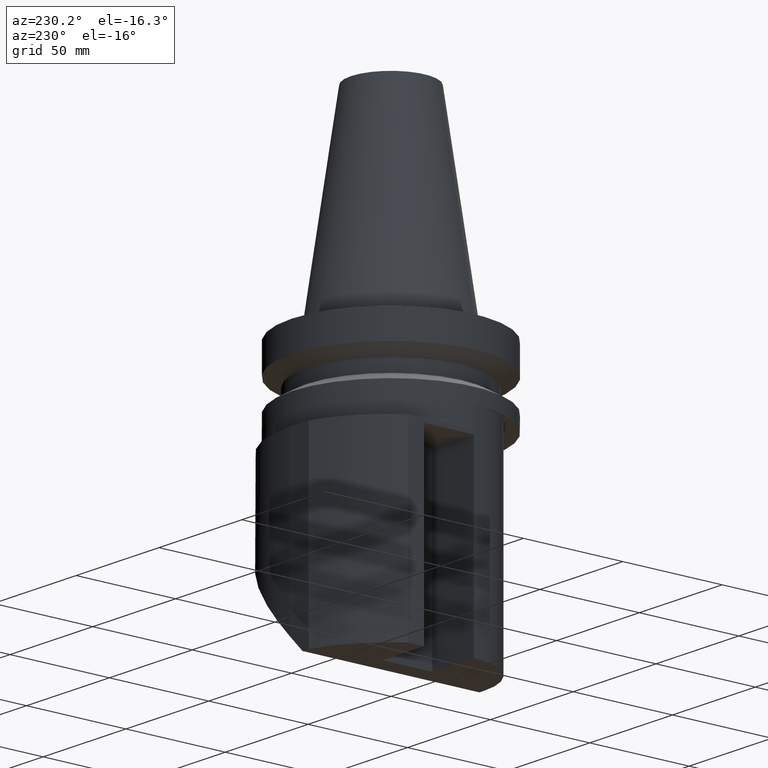
[diagram: clean part render]
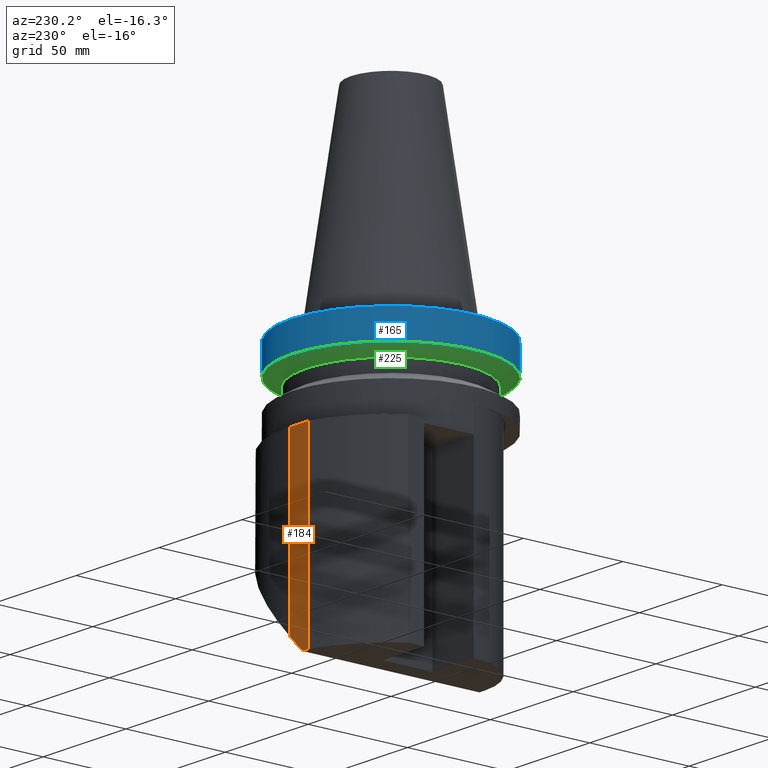
[diagram: same view with three faces highlighted in distinct colors, each labeled with its STEP entity id]
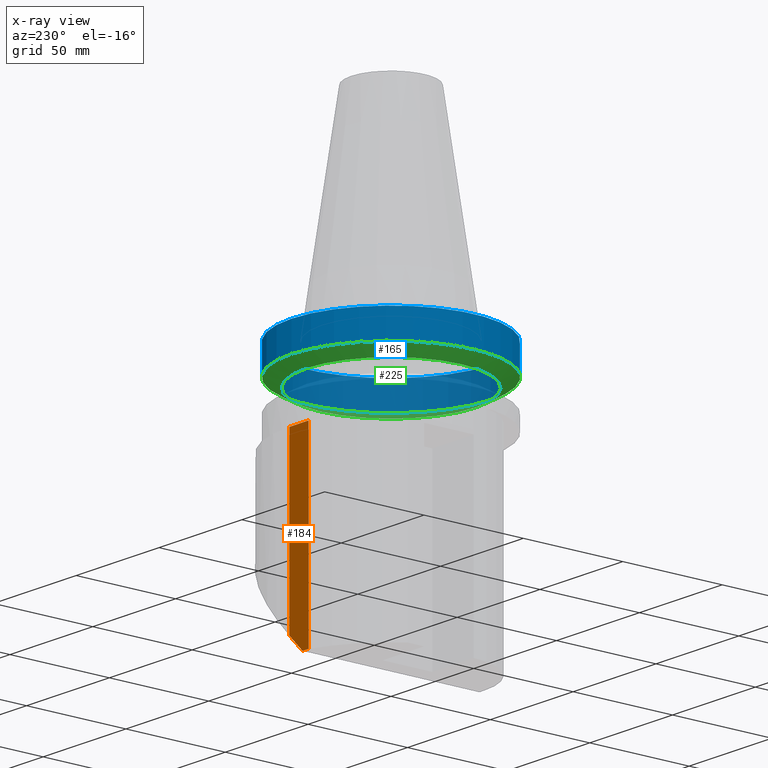
[diagram: x-ray of the same camera — body ghosted, the three highlighted faces saturated]
A machine part, auxiliary view with three faces highlighted in distinct colors.
The next image is the same camera in x-ray (body ghosted, the three faces saturated) — at least one of them is partly hidden behind the body in this view.
Their STEP definitions:

[orange] entity #184 — the highlighted planar face has unit normal (-0, -1, 0).
#184=ADVANCED_FACE('Unnamed[1]',(#422),#423,.F.);
#201=EDGE_CURVE('Unnamed[1]',#313,#430,#446,.T.);
#207=EDGE_CURVE('Unnamed[1]',#313,#416,#452,.T.);
#250=EDGE_CURVE('Unnamed[1]',#430,#427,#506,.T.);
#258=EDGE_CURVE('Unnamed[1]',#483,#427,#516,.F.);
#264=EDGE_CURVE('Unnamed[1]',#416,#483,#523,.T.);
#313=VERTEX_POINT('',#571);
#416=VERTEX_POINT('',#715);
#422=FACE_OUTER_BOUND('',#723,.T.);
#423=PLANE('',#724);
#427=VERTEX_POINT('',#731);
#430=VERTEX_POINT('',#735);
#446=LINE('',#756,#757);
#452=LINE('',#767,#768);
#483=VERTEX_POINT('',#816);
#506=LINE('',#847,#848);
#516=LINE('',#861,#862);
#523=LINE('',#873,#874);
#571=CARTESIAN_POINT('',(-6.99998249077038,56.9999999999947,-131.99998249077));
#715=CARTESIAN_POINT('',(-6.99998249077038,56.9999999999947,-48.0000000000149));
#723=EDGE_LOOP('',(#1017,#1018,#1019,#1020,#1021));
#724=AXIS2_PLACEMENT_3D('',#1022,#1023,#1024);
#731=CARTESIAN_POINT('',(-18.7349939952017,56.9999999999977,-140.000000000001));
#735=CARTESIAN_POINT('',(-15.0000000000016,56.9999999999975,-140.000000000001));
#756=CARTESIAN_POINT('',(-32.5861690417635,56.9999999999985,-157.586169041763));
#757=VECTOR('',#1052,1.0);
#767=CARTESIAN_POINT('',(-6.99998249077039,56.9999999999947,-265.999999999997));
#768=VECTOR('',#1057,1.0);
#816=CARTESIAN_POINT('',(-18.7349939952023,56.9999999999977,-47.9999999999995));
#847=CARTESIAN_POINT('',(-5.01916983034451,56.9999999999969,-140.000000000001));
#848=VECTOR('',#1139,1.0);
#861=CARTESIAN_POINT('',(-18.7349939952018,56.9999999999977,-94.0000000000002));
#862=VECTOR('',#1157,1.0);
#873=CARTESIAN_POINT('',(-5.01916983034378,56.9999999999969,-48.0000000000149));
#874=VECTOR('',#1162,1.0);
#1017=ORIENTED_EDGE('',*,*,#264,.F.);
#1018=ORIENTED_EDGE('',*,*,#207,.F.);
#1019=ORIENTED_EDGE('',*,*,#201,.T.);
#1020=ORIENTED_EDGE('',*,*,#250,.T.);
#1021=ORIENTED_EDGE('',*,*,#258,.F.);
#1022=CARTESIAN_POINT('',(-10.0383396606939,56.9999999999972,-265.999999999997));
#1023=DIRECTION('',(-5.62484361857293E-014,-1.0,1.22464679914739E-016));
#1024=DIRECTION('',(-1.0,5.62484361857293E-014,0.0));
#1052=DIRECTION('',(-0.707106781186548,3.96870550524444E-014,-0.707106781186547));
#1057=DIRECTION('',(6.12323399573677E-017,1.22464679914735E-016,1.0));
#1139=DIRECTION('',(-1.0,5.62484361857293E-014,6.12323399573608E-017));
#1157=DIRECTION('',(6.12323399573678E-017,1.04638831828052E-015,1.0));
#1162=DIRECTION('',(-1.0,5.62484361857293E-014,6.12323399499431E-017));

[blue] entity #165 — the highlighted cylindrical surface (bore or boss wall) has radius 50 mm, axis along (-0, -0, -1).
#115=EDGE_CURVE('Unnamed[1]',#320,#320,#321,.T.);
#165=ADVANCED_FACE('Unnamed[1]',(#394,#395),#396,.T.);
#262=EDGE_CURVE('Unnamed[1]',#520,#520,#521,.T.);
#320=VERTEX_POINT('',#581);
#321=CIRCLE('',#582,50.0000000000022);
#394=FACE_BOUND('',#686,.T.);
#395=FACE_BOUND('',#687,.T.);
#396=CYLINDRICAL_SURFACE('',#688,50.0000000000019);
#520=VERTEX_POINT('',#869);
#521=CIRCLE('',#870,50.0000000000015);
#581=CARTESIAN_POINT('',(-6.21508250567317E-015,-50.0000000000022,-1.50000000000137));
#582=AXIS2_PLACEMENT_3D('',#919,#920,#921);
#686=EDGE_LOOP('',(#982));
#687=EDGE_LOOP('',(#983));
#688=AXIS2_PLACEMENT_3D('',#984,#985,#986);
#869=CARTESIAN_POINT('',(-7.08458173306774E-015,-50.0000000000015,-15.700000000002));
#870=AXIS2_PLACEMENT_3D('',#1159,#1160,#1161);
#919=CARTESIAN_POINT('',(-9.18485099361399E-017,-1.12838042102131E-014,-1.50000000000142));
#920=DIRECTION('',(6.12323399573678E-017,1.04638831828052E-015,1.0));
#921=DIRECTION('',(-1.22464679914735E-016,-1.0,1.04638831828052E-015));
#982=ORIENTED_EDGE('',*,*,#115,.F.);
#983=ORIENTED_EDGE('',*,*,#262,.T.);
#984=CARTESIAN_POINT('',(-5.26598123633469E-016,-1.87131612700051E-014,-8.60000000000171));
#985=DIRECTION('',(-6.12323399573678E-017,-1.04638831828052E-015,-1.0));
#986=DIRECTION('',(-1.22464679914735E-016,-1.0,1.04638831828052E-015));
#1159=CARTESIAN_POINT('',(-9.61347737330799E-016,-2.61425183297972E-014,-15.700000000002));
#1160=DIRECTION('',(6.12323399573678E-017,1.04638831828052E-015,1.0));
#1161=DIRECTION('',(-1.22464679914735E-016,-1.0,1.04638831828052E-015));

[green] entity #225 — the highlighted conical surface has half-angle 60 deg.
#225=ADVANCED_FACE('Unnamed[1]',(#471,#472),#473,.T.);
#230=EDGE_CURVE('Unnamed[1]',#480,#480,#481,.T.);
#262=EDGE_CURVE('Unnamed[1]',#520,#520,#521,.T.);
#471=FACE_BOUND('',#801,.T.);
#472=FACE_BOUND('',#802,.T.);
#473=CONICAL_SURFACE('',#803,46.2500000000011,1.04719755119665);
#480=VERTEX_POINT('',#812);
#481=CIRCLE('',#813,42.5000000000008);
#520=VERTEX_POINT('',#869);
#521=CIRCLE('',#870,50.0000000000015);
#801=EDGE_LOOP('',(#1074));
#802=EDGE_LOOP('',(#1075));
#803=AXIS2_PLACEMENT_3D('',#1076,#1077,#1078);
#812=CARTESIAN_POINT('',(-6.43124044338837E-015,-42.5000000000008,-20.0301270189241));
#813=AXIS2_PLACEMENT_3D('',#1088,#1089,#1090);
#869=CARTESIAN_POINT('',(-7.08458173306774E-015,-50.0000000000015,-15.700000000002));
#870=AXIS2_PLACEMENT_3D('',#1159,#1160,#1161);
#1074=ORIENTED_EDGE('',*,*,#262,.F.);
#1075=ORIENTED_EDGE('',*,*,#230,.T.);
#1076=CARTESIAN_POINT('',(-1.09391964217141E-015,-2.84080154944326E-014,-17.8650635094631));
#1077=DIRECTION('',(6.12323399573678E-017,1.04638831828052E-015,1.0));
#1078=DIRECTION('',(-1.22464679914735E-016,-1.0,1.04638831828052E-015));
#1088=CARTESIAN_POINT('',(-1.22649154701202E-015,-3.06735126590681E-014,-20.0301270189241));
#1089=DIRECTION('',(6.12323399573678E-017,1.04638831828052E-015,1.0));
#1090=DIRECTION('',(-1.22464679914735E-016,-1.0,1.04638831828052E-015));
#1159=CARTESIAN_POINT('',(-9.61347737330799E-016,-2.61425183297972E-014,-15.700000000002));
#1160=DIRECTION('',(6.12323399573678E-017,1.04638831828052E-015,1.0));
#1161=DIRECTION('',(-1.22464679914735E-016,-1.0,1.04638831828052E-015));